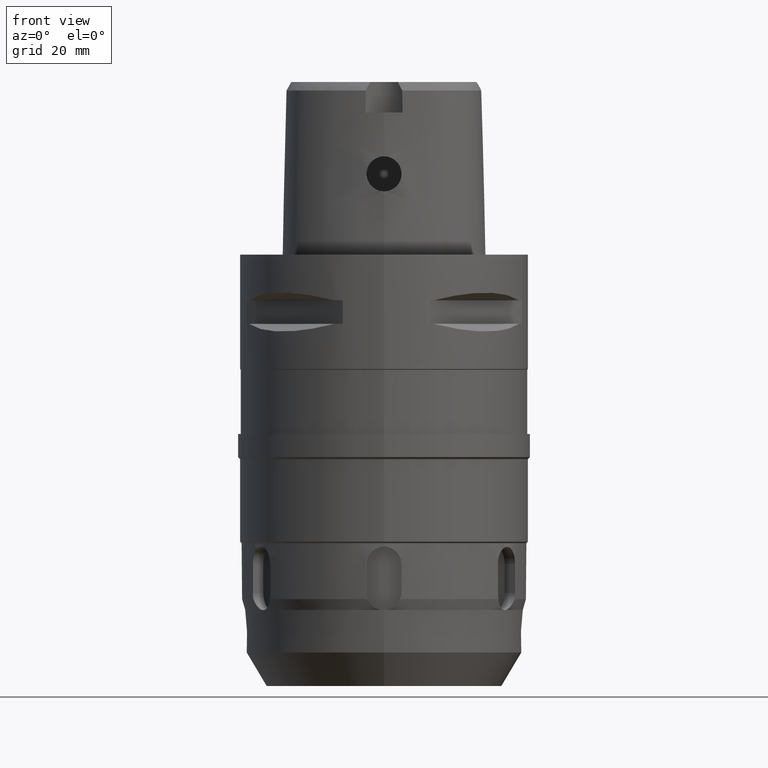
[diagram: clean part render]
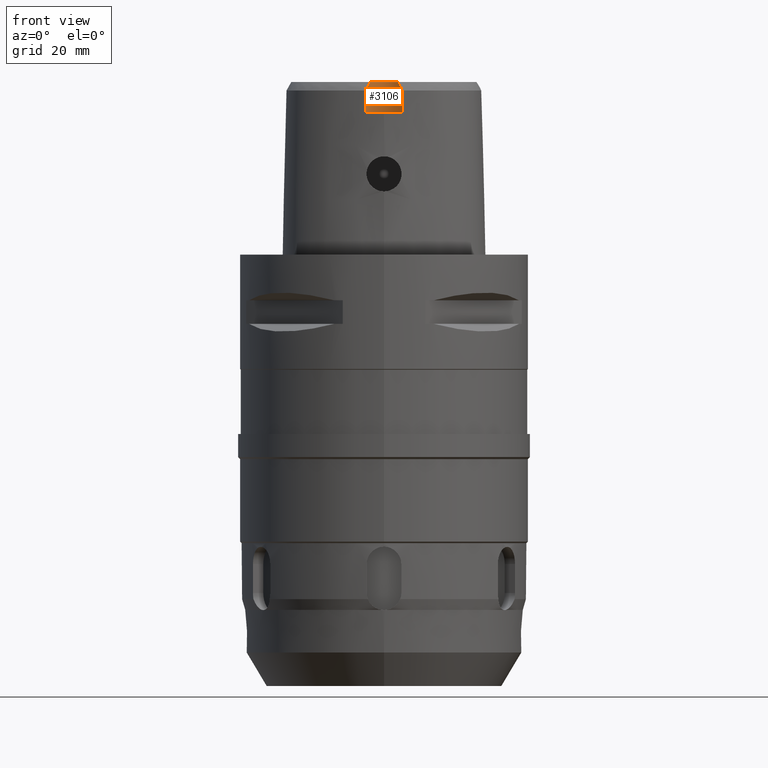
[diagram: same view with one face highlighted and labeled with its STEP entity id]
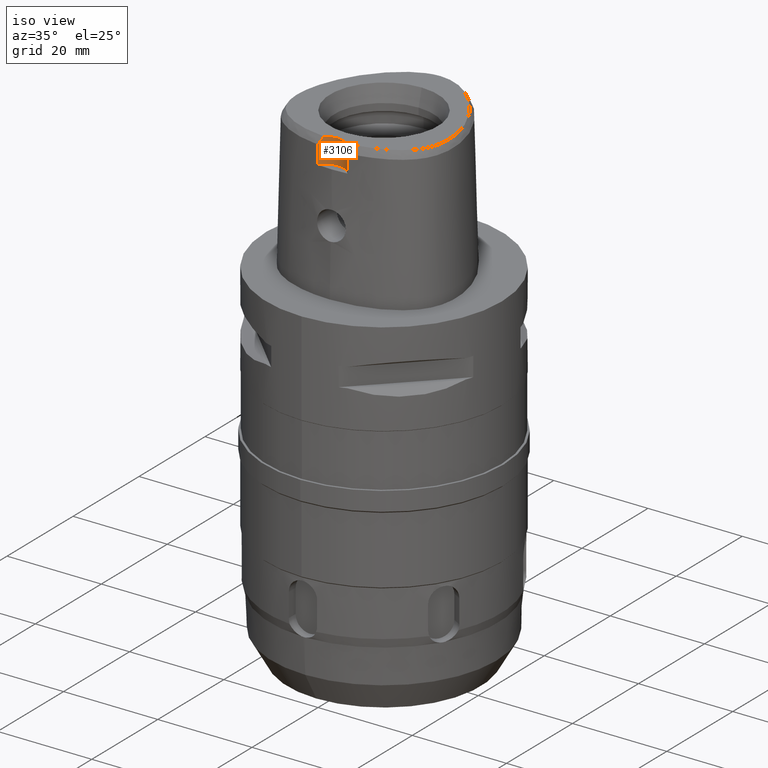
[diagram: same view with one face highlighted and labeled with its STEP entity id]
A machine part, front view. The second image highlights one B-rep face of the part: STEP entity #3106.
A second angle (iso view) of the same face is appended — the face is thin or edge-on in the first view.
In plain terms, the highlighted cylindrical surface (edge-blend (fillet) strip) has radius 4 mm, axis along (0, 0, 1).
Its self-contained STEP definition (entity closure, byte-faithful):
#17=CARTESIAN_POINT('',(0.E0,-1.8E1,3.E1));
#18=DIRECTION('',(0.E0,0.E0,1.E0));
#19=DIRECTION('',(6.016359810411E-1,7.987703964950E-1,0.E0));
#20=AXIS2_PLACEMENT_3D('',#17,#18,#19);
#128=CARTESIAN_POINT('',(3.168920890823E0,-1.555911073834E1,2.852071374673E1));
#129=CARTESIAN_POINT('',(3.092749076912E0,-1.546021954479E1,2.871178738767E1));
#130=CARTESIAN_POINT('',(2.933471232134E0,-1.527273520012E1,2.907626539772E1));
#131=CARTESIAN_POINT('',(2.681027010051E0,-1.502454694376E1,2.956383801575E1));
#132=CARTESIAN_POINT('',(2.499754439312E0,-1.487512482123E1,2.986018896258E1));
#133=CARTESIAN_POINT('',(2.406543924165E0,-1.480491841402E1,3.E1));
#181=CARTESIAN_POINT('',(-2.406542353495E0,-1.480491723099E1,3.E1));
#182=CARTESIAN_POINT('',(-2.503639605490E0,-1.487805106389E1,2.985436046694E1));
#183=CARTESIAN_POINT('',(-2.689043459057E0,-1.503168053900E1,2.954974583040E1));
#184=CARTESIAN_POINT('',(-2.939275298575E0,-1.527922544451E1,2.906360335171E1));
#185=CARTESIAN_POINT('',(-3.094941584889E0,-1.546306593277E1,2.870628717071E1));
#186=CARTESIAN_POINT('',(-3.168920966623E0,-1.555911077539E1,2.852071192347E1));
#240=CARTESIAN_POINT('',(-3.168920966623E0,-1.555911077539E1,2.852071192347E1));
#241=CARTESIAN_POINT('',(-3.176474039100E0,-1.556891666509E1,2.809611645937E1));
#242=CARTESIAN_POINT('',(-3.191280249308E0,-1.558832444513E1,2.724696144168E1));
#243=CARTESIAN_POINT('',(-3.213330813519E0,-1.561778410051E1,2.597339362925E1));
#244=CARTESIAN_POINT('',(-3.227943724850E0,-1.563768160294E1,2.512445079602E1));
#245=CARTESIAN_POINT('',(-3.235096612069E0,-1.564751802487E1,2.47E1));
#1940=CARTESIAN_POINT('',(3.235096591086E0,-1.564751801258E1,2.470000006081E1));
#1941=CARTESIAN_POINT('',(3.227943694998E0,-1.563768157846E1,2.512445138279E1));
#1942=CARTESIAN_POINT('',(3.213330797133E0,-1.561778407881E1,2.597339479062E1));
#1943=CARTESIAN_POINT('',(3.191280187174E0,-1.558832433621E1,2.724696596470E1));
#1944=CARTESIAN_POINT('',(3.176473973167E0,-1.556891664015E1,2.809611775642E1));
#1945=CARTESIAN_POINT('',(3.168920890823E0,-1.555911073834E1,2.852071374673E1));
#1977=CARTESIAN_POINT('',(0.E0,-1.8E1,2.47E1));
#1978=DIRECTION('',(0.E0,0.E0,-1.E0));
#1979=DIRECTION('',(-8.087802799973E-1,5.881109237954E-1,0.E0));
#1980=AXIS2_PLACEMENT_3D('',#1977,#1978,#1979);
#2739=CARTESIAN_POINT('',(2.406543924164E0,-1.480491841402E1,3.E1));
#2740=CARTESIAN_POINT('',(-2.406542353497E0,-1.480491723099E1,3.E1));
#2741=VERTEX_POINT('',#2739);
#2742=VERTEX_POINT('',#2740);
#2748=VERTEX_POINT('',#128);
#2749=VERTEX_POINT('',#1940);
#2750=CARTESIAN_POINT('',(-3.235121119989E0,-1.564755630482E1,2.47E1));
#2751=VERTEX_POINT('',#2750);
#2752=VERTEX_POINT('',#240);
#3088=CARTESIAN_POINT('',(0.E0,-1.8E1,3.E1));
#3089=DIRECTION('',(0.E0,0.E0,1.E0));
#3090=DIRECTION('',(1.E0,0.E0,0.E0));
#3091=AXIS2_PLACEMENT_3D('',#3088,#3089,#3090);
#3092=CYLINDRICAL_SURFACE('',#3091,4.E0);
#3093=ORIENTED_EDGE('',*,*,#3073,.F.);
#3095=ORIENTED_EDGE('',*,*,#3094,.F.);
#3097=ORIENTED_EDGE('',*,*,#3096,.F.);
#3099=ORIENTED_EDGE('',*,*,#3098,.F.);
#3101=ORIENTED_EDGE('',*,*,#3100,.F.);
#3103=ORIENTED_EDGE('',*,*,#3102,.F.);
#3104=EDGE_LOOP('',(#3093,#3095,#3097,#3099,#3101,#3103));
#3105=FACE_OUTER_BOUND('',#3104,.F.);
#21=CIRCLE('',#20,4.E0);
#134=B_SPLINE_CURVE_WITH_KNOTS('',3,(#128,#129,#130,#131,#132,#133),
.UNSPECIFIED.,.F.,.F.,(4,1,1,4),(0.E0,3.333333333333E-1,6.666666666667E-1,1.E0),
.UNSPECIFIED.);
#187=B_SPLINE_CURVE_WITH_KNOTS('',3,(#181,#182,#183,#184,#185,#186),
.UNSPECIFIED.,.F.,.F.,(4,1,1,4),(0.E0,3.333333333333E-1,6.666666666667E-1,1.E0),
.UNSPECIFIED.);
#246=B_SPLINE_CURVE_WITH_KNOTS('',3,(#240,#241,#242,#243,#244,#245),
.UNSPECIFIED.,.F.,.F.,(4,1,1,4),(0.E0,3.333333333333E-1,6.666666666667E-1,1.E0),
.UNSPECIFIED.);
#1946=B_SPLINE_CURVE_WITH_KNOTS('',3,(#1940,#1941,#1942,#1943,#1944,#1945),
.UNSPECIFIED.,.F.,.F.,(4,1,1,4),(0.E0,3.333333333333E-1,6.666666666667E-1,1.E0),
.UNSPECIFIED.);
#1981=CIRCLE('',#1980,4.E0);
#3073=EDGE_CURVE('',#2741,#2742,#21,.T.);
#3094=EDGE_CURVE('',#2748,#2741,#134,.T.);
#3096=EDGE_CURVE('',#2749,#2748,#1946,.T.);
#3098=EDGE_CURVE('',#2751,#2749,#1981,.T.);
#3100=EDGE_CURVE('',#2752,#2751,#246,.T.);
#3102=EDGE_CURVE('',#2742,#2752,#187,.T.);
#3106=ADVANCED_FACE('',(#3105),#3092,.F.);